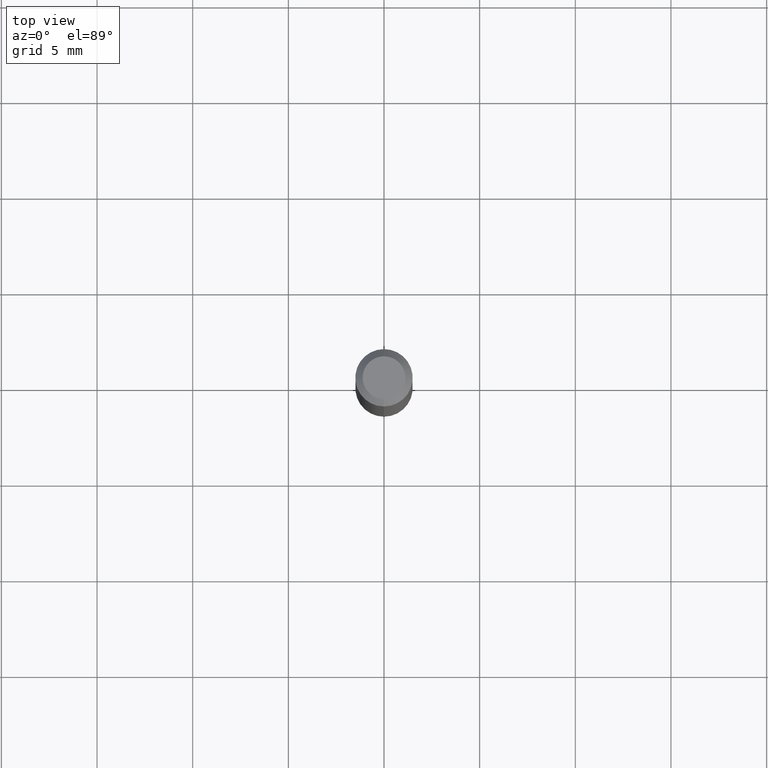
[diagram: clean part render]
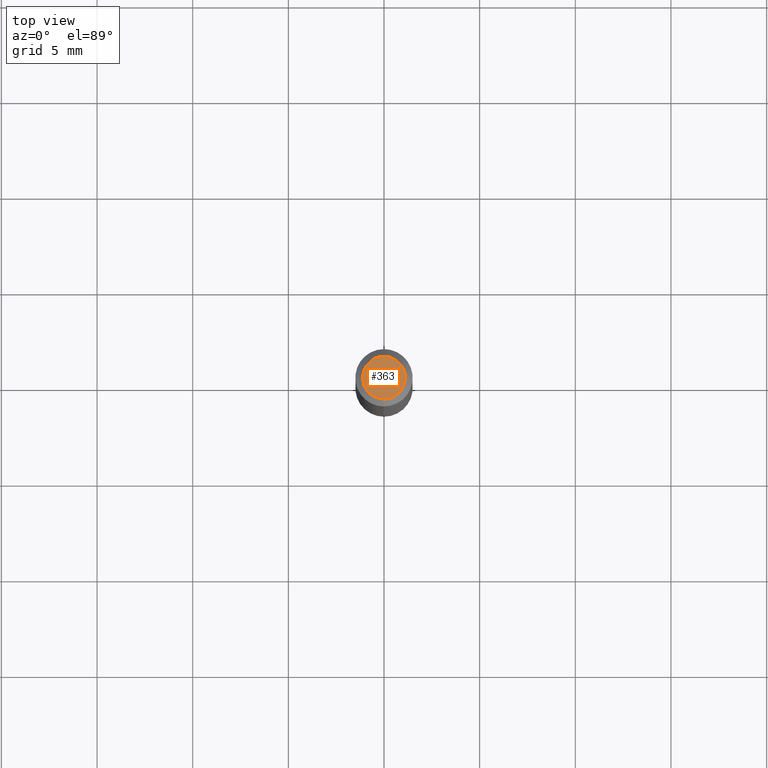
[diagram: same view with one face highlighted and labeled with its STEP entity id]
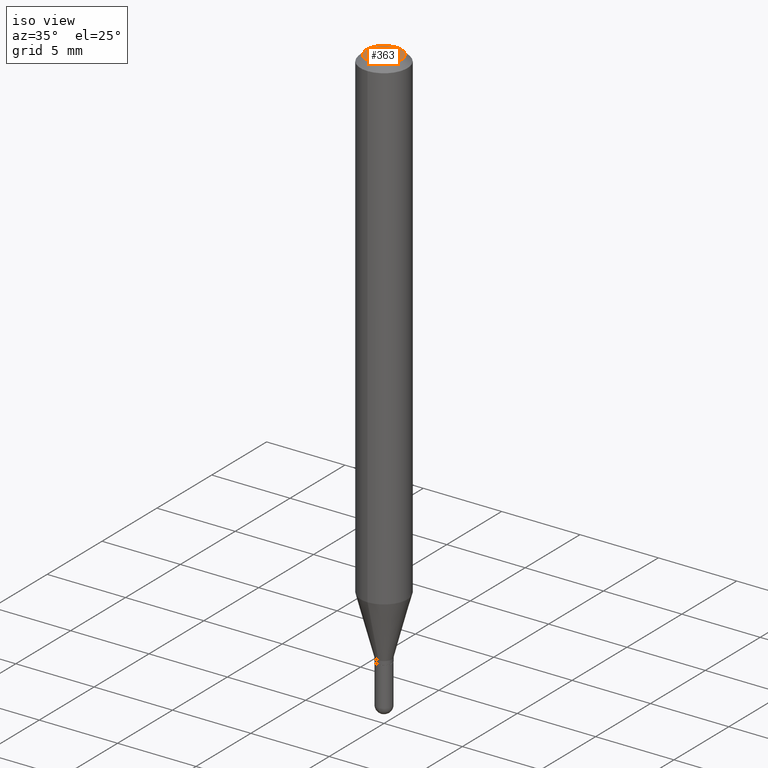
[diagram: same view with one face highlighted and labeled with its STEP entity id]
A machine part, top view. The second image highlights one B-rep face of the part: STEP entity #363.
A second angle (iso view) of the same face is appended — the face is thin or edge-on in the first view.
In plain terms, the highlighted planar face has unit normal (0, -0, -1).
Its self-contained STEP definition (entity closure, byte-faithful):
#10 = EDGE_CURVE ( 'NONE', #94, #329, #134, .T. ) ;
#16 = FACE_OUTER_BOUND ( 'NONE', #187, .T. ) ;
#94 = VERTEX_POINT ( 'NONE', #307 ) ;
#107 = CARTESIAN_POINT ( 'NONE',  ( 8.396513641257656738E-45, -1.197829887968316227E-30, -3.432111957952484022E-16 ) ) ;
#134 = CIRCLE ( 'NONE', #164, 0.04404999999999999888 ) ;
#164 = AXIS2_PLACEMENT_3D ( 'NONE', #107, #234, #389 ) ;
#169 = CARTESIAN_POINT ( 'NONE',  ( 3.075995059520799729E-16, 0.04404999999999999888, -3.253430260801311543E-16 ) ) ;
#187 = EDGE_LOOP ( 'NONE', ( #374, #376 ) ) ;
#234 = DIRECTION ( 'NONE',  ( -2.446456800980005402E-29, 3.490066474063722068E-15, 1.000000000000000000 ) ) ;
#244 = EDGE_CURVE ( 'NONE', #329, #94, #489, .T. ) ;
#281 = DIRECTION ( 'NONE',  ( -6.982962677686265133E-15, -1.000000000000000000, 3.490066474063722068E-15 ) ) ;
#289 = CARTESIAN_POINT ( 'NONE',  ( 8.396513641257656738E-45, -1.197829887968316227E-30, -3.432111957952484022E-16 ) ) ;
#307 = CARTESIAN_POINT ( 'NONE',  ( 3.599717260347271507E-16, 0.04404999999999999888, -4.969486239777553554E-16 ) ) ;
#327 = AXIS2_PLACEMENT_3D ( 'NONE', #169, #491, #416 ) ;
#329 = VERTEX_POINT ( 'NONE', #448 ) ;
#363 = ADVANCED_FACE ( 'NONE', ( #16 ), #454, .F. ) ;
#374 = ORIENTED_EDGE ( 'NONE', *, *, #10, .T. ) ;
#376 = ORIENTED_EDGE ( 'NONE', *, *, #244, .T. ) ;
#389 = DIRECTION ( 'NONE',  ( -6.982962677686265133E-15, -1.000000000000000000, 3.490066474063722068E-15 ) ) ;
#400 = AXIS2_PLACEMENT_3D ( 'NONE', #289, #475, #281 ) ;
#416 = DIRECTION ( 'NONE',  ( 6.982962677686265922E-15, 1.000000000000000000, -3.490066474063722068E-15 ) ) ;
#448 = CARTESIAN_POINT ( 'NONE',  ( -3.536586717851222218E-16, -0.04404999999999999888, -1.894737676127414243E-16 ) ) ;
#454 = PLANE ( 'NONE',  #327 ) ;
#475 = DIRECTION ( 'NONE',  ( -2.446456800980005402E-29, 3.490066474063722068E-15, 1.000000000000000000 ) ) ;
#489 = CIRCLE ( 'NONE', #400, 0.04404999999999999888 ) ;
#491 = DIRECTION ( 'NONE',  ( 2.446456800980005121E-29, -3.490066474063722068E-15, -1.000000000000000000 ) ) ;